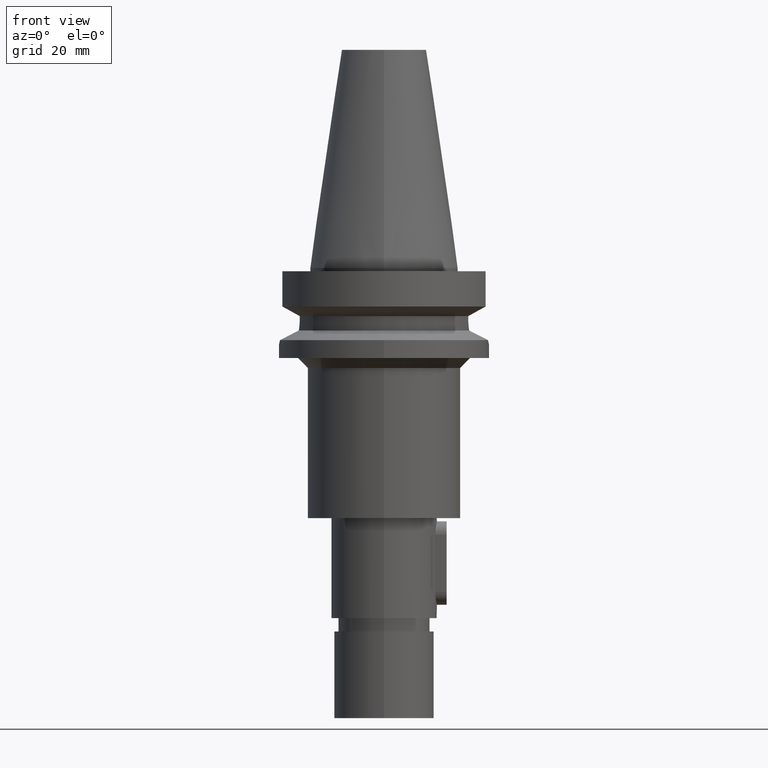
[diagram: clean part render]
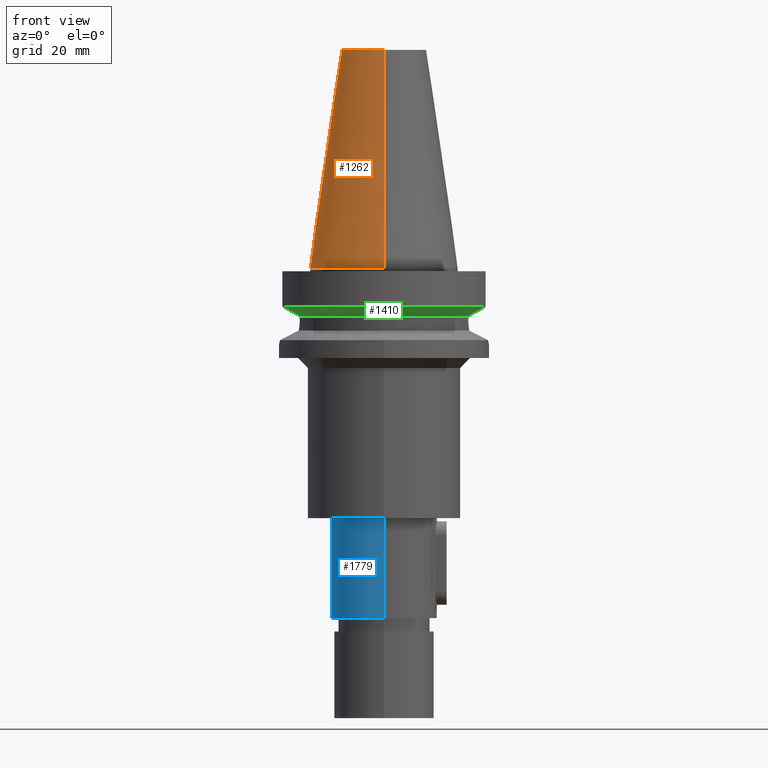
[diagram: same view with three faces highlighted in distinct colors, each labeled with its STEP entity id]
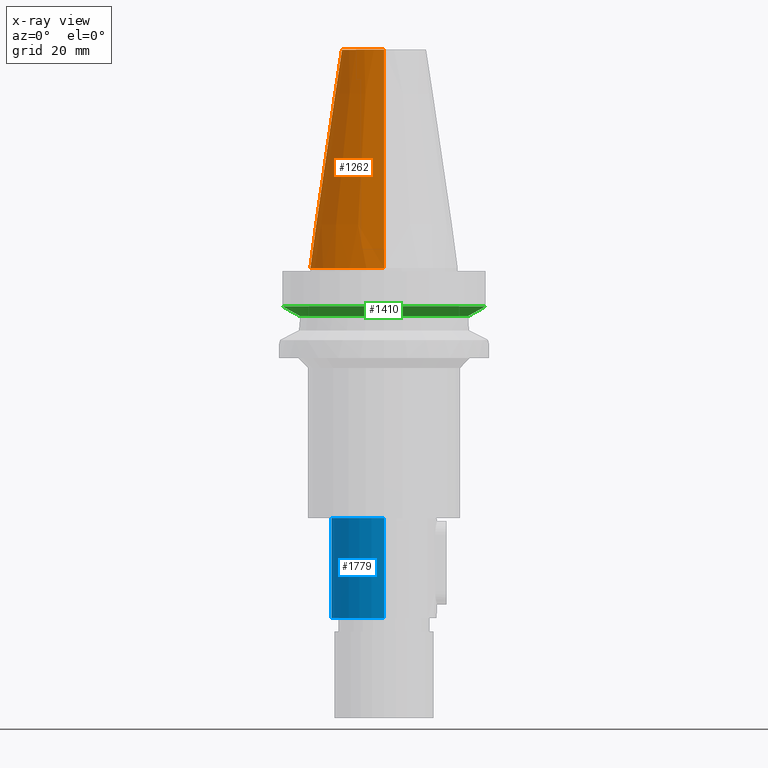
[diagram: x-ray of the same camera — body ghosted, the three highlighted faces saturated]
A machine part, front view with three faces highlighted in distinct colors.
The next image is the same camera in x-ray (body ghosted, the three faces saturated) — at least one of them is partly hidden behind the body in this view.
Their STEP definitions:

[orange] entity #1262 — the highlighted conical surface has half-angle 8.297 deg.
#17=CARTESIAN_POINT('',(0.E0,1.625106302469E-14,6.54E1));
#18=DIRECTION('',(0.E0,0.E0,-1.E0));
#19=DIRECTION('',(0.E0,-1.E0,0.E0));
#20=AXIS2_PLACEMENT_3D('',#17,#18,#19);
#50=DIRECTION('',(0.E0,-1.443043893540E-1,-9.895333461856E-1));
#51=VECTOR('',#50,6.609175956738E1);
#52=CARTESIAN_POINT('',(0.E0,-1.268766899430E1,6.54E1));
#53=LINE('',#52,#51);
#57=CARTESIAN_POINT('',(0.E0,1.625106302469E-14,2.842170943040E-14));
#58=DIRECTION('',(0.E0,0.E0,-1.E0));
#59=DIRECTION('',(0.E0,-1.E0,0.E0));
#60=AXIS2_PLACEMENT_3D('',#57,#58,#59);
#65=DIRECTION('',(0.E0,1.443043893540E-1,-9.895333461856E-1));
#66=VECTOR('',#65,6.609175956738E1);
#67=CARTESIAN_POINT('',(0.E0,1.268766899430E1,6.54E1));
#68=LINE('',#67,#66);
#1064=CARTESIAN_POINT('',(0.E0,-1.268766899430E1,6.54E1));
#1065=CARTESIAN_POINT('',(0.E0,1.268766899430E1,6.54E1));
#1066=VERTEX_POINT('',#1064);
#1067=VERTEX_POINT('',#1065);
#1084=CARTESIAN_POINT('',(0.E0,2.2225E1,7.105427357601E-14));
#1085=VERTEX_POINT('',#1084);
#1086=CARTESIAN_POINT('',(0.E0,-2.2225E1,7.105427357601E-14));
#1087=VERTEX_POINT('',#1086);
#1248=CARTESIAN_POINT('',(0.E0,1.625106302469E-14,3.27E1));
#1249=DIRECTION('',(0.E0,0.E0,-1.E0));
#1250=DIRECTION('',(0.E0,-1.E0,0.E0));
#1251=AXIS2_PLACEMENT_3D('',#1248,#1249,#1250);
#1252=CONICAL_SURFACE('',#1251,1.745633449715E1,8.297E0);
#1254=ORIENTED_EDGE('',*,*,#1253,.F.);
#1255=ORIENTED_EDGE('',*,*,#1235,.F.);
#1257=ORIENTED_EDGE('',*,*,#1256,.T.);
#1259=ORIENTED_EDGE('',*,*,#1258,.T.);
#1260=EDGE_LOOP('',(#1254,#1255,#1257,#1259));
#1261=FACE_OUTER_BOUND('',#1260,.F.);
#21=CIRCLE('',#20,1.268766899430E1);
#61=CIRCLE('',#60,2.2225E1);
#1235=EDGE_CURVE('',#1066,#1067,#21,.T.);
#1253=EDGE_CURVE('',#1067,#1085,#68,.T.);
#1256=EDGE_CURVE('',#1066,#1087,#53,.T.);
#1258=EDGE_CURVE('',#1087,#1085,#61,.T.);
#1262=ADVANCED_FACE('',(#1261),#1252,.T.);

[blue] entity #1779 — the highlighted cylindrical surface (partial cylindrical patch) has radius 15.875 mm, axis along (0, 0, -1).
#718=CARTESIAN_POINT('',(0.E0,2.148275415064E-14,-7.5E1));
#719=DIRECTION('',(0.E0,0.E0,-1.E0));
#720=DIRECTION('',(0.E0,-1.E0,0.E0));
#721=AXIS2_PLACEMENT_3D('',#718,#719,#720);
#726=DIRECTION('',(0.E0,0.E0,-1.E0));
#727=VECTOR('',#726,3.E1);
#728=CARTESIAN_POINT('',(0.E0,1.5875E1,-7.5E1));
#729=LINE('',#728,#727);
#747=DIRECTION('',(0.E0,0.E0,-1.E0));
#748=VECTOR('',#747,3.E1);
#749=CARTESIAN_POINT('',(0.E0,-1.5875E1,-7.5E1));
#750=LINE('',#749,#748);
#754=CARTESIAN_POINT('',(0.E0,2.148275415064E-14,-1.05E2));
#755=DIRECTION('',(0.E0,0.E0,1.E0));
#756=DIRECTION('',(0.E0,1.E0,0.E0));
#757=AXIS2_PLACEMENT_3D('',#754,#755,#756);
#1187=CARTESIAN_POINT('',(0.E0,1.5875E1,-7.5E1));
#1188=CARTESIAN_POINT('',(0.E0,-1.5875E1,-7.5E1));
#1189=VERTEX_POINT('',#1187);
#1190=VERTEX_POINT('',#1188);
#1191=CARTESIAN_POINT('',(0.E0,1.5875E1,-1.05E2));
#1192=VERTEX_POINT('',#1191);
#1193=CARTESIAN_POINT('',(0.E0,-1.5875E1,-1.05E2));
#1194=VERTEX_POINT('',#1193);
#1767=CARTESIAN_POINT('',(0.E0,2.148275415064E-14,7.542E1));
#1768=DIRECTION('',(0.E0,0.E0,-1.E0));
#1769=DIRECTION('',(0.E0,-1.E0,0.E0));
#1770=AXIS2_PLACEMENT_3D('',#1767,#1768,#1769);
#1771=CYLINDRICAL_SURFACE('',#1770,1.5875E1);
#1772=ORIENTED_EDGE('',*,*,#1743,.F.);
#1773=ORIENTED_EDGE('',*,*,#1733,.F.);
#1774=ORIENTED_EDGE('',*,*,#1747,.T.);
#1776=ORIENTED_EDGE('',*,*,#1775,.F.);
#1777=EDGE_LOOP('',(#1772,#1773,#1774,#1776));
#1778=FACE_OUTER_BOUND('',#1777,.F.);
#722=CIRCLE('',#721,1.5875E1);
#758=CIRCLE('',#757,1.5875E1);
#1733=EDGE_CURVE('',#1190,#1189,#722,.T.);
#1743=EDGE_CURVE('',#1189,#1192,#729,.T.);
#1747=EDGE_CURVE('',#1190,#1194,#750,.T.);
#1775=EDGE_CURVE('',#1192,#1194,#758,.T.);
#1779=ADVANCED_FACE('',(#1778),#1771,.T.);

[green] entity #1410 — the highlighted conical surface has half-angle 60 deg.
#207=CARTESIAN_POINT('',(-3.045402291359E1,-8.049999278159E0,
-1.156551215414E1));
#208=CARTESIAN_POINT('',(-2.987645774125E1,-8.049999278159E0,
-1.188789690534E1));
#209=CARTESIAN_POINT('',(-2.872091200179E1,-8.049999725654E0,
-1.253193851699E1));
#210=CARTESIAN_POINT('',(-2.698538663759E1,-8.050002042972E0,
-1.349404339393E1));
#211=CARTESIAN_POINT('',(-2.582730530297E1,-8.049995415963E0,
-1.413348340779E1));
#212=CARTESIAN_POINT('',(-2.524772413116E1,-8.049995415963E0,
-1.445229202664E1));
#251=CARTESIAN_POINT('',(0.E0,1.065333950388E-14,-1.156550565267E1));
#252=DIRECTION('',(0.E0,0.E0,1.E0));
#253=DIRECTION('',(-9.667943721520E-1,-2.555555555555E-1,0.E0));
#254=AXIS2_PLACEMENT_3D('',#251,#252,#253);
#259=CARTESIAN_POINT('',(0.E0,1.065333950388E-14,-1.156550565267E1));
#260=DIRECTION('',(0.E0,0.E0,1.E0));
#261=DIRECTION('',(0.E0,-1.E0,0.E0));
#262=AXIS2_PLACEMENT_3D('',#259,#260,#261);
#267=CARTESIAN_POINT('',(0.E0,1.065333950388E-14,-1.445225699861E1));
#268=DIRECTION('',(0.E0,0.E0,-1.E0));
#269=DIRECTION('',(9.527442516822E-1,-3.037735849057E-1,0.E0));
#270=AXIS2_PLACEMENT_3D('',#267,#268,#269);
#275=CARTESIAN_POINT('',(0.E0,1.065333950388E-14,-1.445225699861E1));
#276=DIRECTION('',(0.E0,0.E0,-1.E0));
#277=DIRECTION('',(0.E0,-1.E0,0.E0));
#278=AXIS2_PLACEMENT_3D('',#275,#276,#277);
#297=CARTESIAN_POINT('',(2.524772216362E1,-8.050001586879E0,-1.445224487346E1));
#298=CARTESIAN_POINT('',(2.582727361329E1,-8.050001586879E0,-1.413345267832E1));
#299=CARTESIAN_POINT('',(2.698547395990E1,-8.049999811957E0,-1.349419207889E1));
#300=CARTESIAN_POINT('',(2.872100164215E1,-8.049998277833E0,-1.253209185695E1));
#301=CARTESIAN_POINT('',(2.987642830995E1,-8.050004143752E0,-1.188786874791E1));
#302=CARTESIAN_POINT('',(3.045402162746E1,-8.050004143752E0,-1.156546832751E1));
#1119=CARTESIAN_POINT('',(-2.524772413116E1,-8.049995415963E0,
-1.445229202664E1));
#1121=VERTEX_POINT('',#1119);
#1122=CARTESIAN_POINT('',(-3.045402291359E1,-8.049999278159E0,
-1.156551215414E1));
#1123=VERTEX_POINT('',#1122);
#1124=CARTESIAN_POINT('',(2.524772266958E1,-8.05E0,-1.445225699861E1));
#1125=CARTESIAN_POINT('',(0.E0,-2.65E1,-1.445225699861E1));
#1126=VERTEX_POINT('',#1124);
#1127=VERTEX_POINT('',#1125);
#1149=CARTESIAN_POINT('',(0.E0,-3.15E1,-1.156550565267E1));
#1150=CARTESIAN_POINT('',(3.045402272279E1,-8.049999999999E0,
-1.156550565267E1));
#1151=VERTEX_POINT('',#1149);
#1152=VERTEX_POINT('',#1150);
#1394=CARTESIAN_POINT('',(0.E0,1.065333950388E-14,-1.300888132564E1));
#1395=DIRECTION('',(0.E0,0.E0,1.E0));
#1396=DIRECTION('',(0.E0,1.E0,0.E0));
#1397=AXIS2_PLACEMENT_3D('',#1394,#1395,#1396);
#1398=CONICAL_SURFACE('',#1397,2.9E1,6.E1);
#1399=ORIENTED_EDGE('',*,*,#1366,.F.);
#1401=ORIENTED_EDGE('',*,*,#1400,.T.);
#1403=ORIENTED_EDGE('',*,*,#1402,.T.);
#1405=ORIENTED_EDGE('',*,*,#1404,.F.);
#1406=ORIENTED_EDGE('',*,*,#1379,.T.);
#1407=ORIENTED_EDGE('',*,*,#1377,.T.);
#1408=EDGE_LOOP('',(#1399,#1401,#1403,#1405,#1406,#1407));
#1409=FACE_OUTER_BOUND('',#1408,.F.);
#213=B_SPLINE_CURVE_WITH_KNOTS('',3,(#207,#208,#209,#210,#211,#212),
.UNSPECIFIED.,.F.,.F.,(4,1,1,4),(0.E0,3.333333333333E-1,6.666666666667E-1,1.E0),
.UNSPECIFIED.);
#255=CIRCLE('',#254,3.15E1);
#263=CIRCLE('',#262,3.15E1);
#271=CIRCLE('',#270,2.65E1);
#279=CIRCLE('',#278,2.65E1);
#303=B_SPLINE_CURVE_WITH_KNOTS('',3,(#297,#298,#299,#300,#301,#302),
.UNSPECIFIED.,.F.,.F.,(4,1,1,4),(0.E0,3.333333333333E-1,6.666666666667E-1,1.E0),
.UNSPECIFIED.);
#1366=EDGE_CURVE('',#1123,#1121,#213,.T.);
#1377=EDGE_CURVE('',#1127,#1121,#279,.T.);
#1379=EDGE_CURVE('',#1126,#1127,#271,.T.);
#1400=EDGE_CURVE('',#1123,#1151,#255,.T.);
#1402=EDGE_CURVE('',#1151,#1152,#263,.T.);
#1404=EDGE_CURVE('',#1126,#1152,#303,.T.);
#1410=ADVANCED_FACE('',(#1409),#1398,.T.);